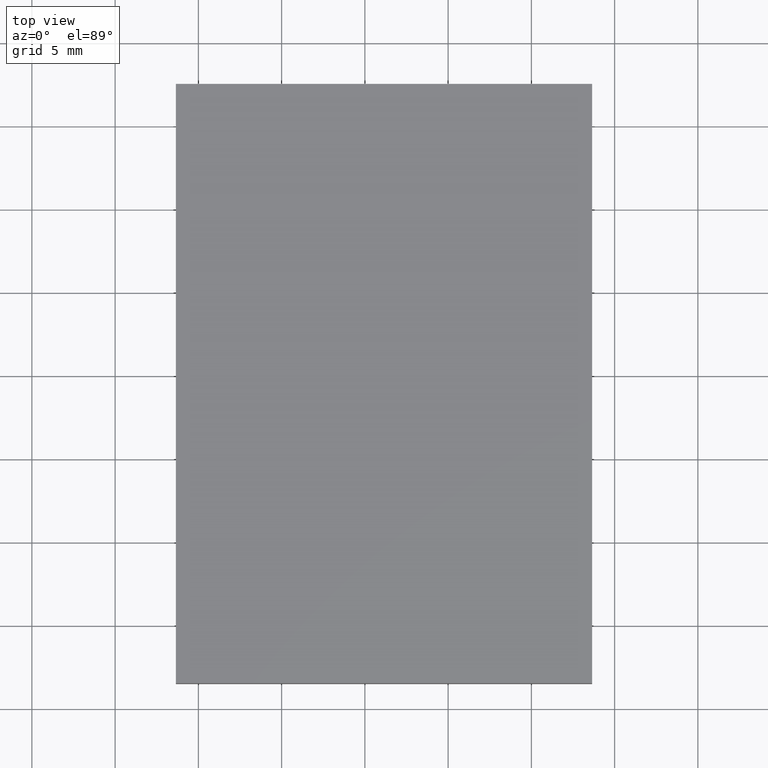
[diagram: clean part render]
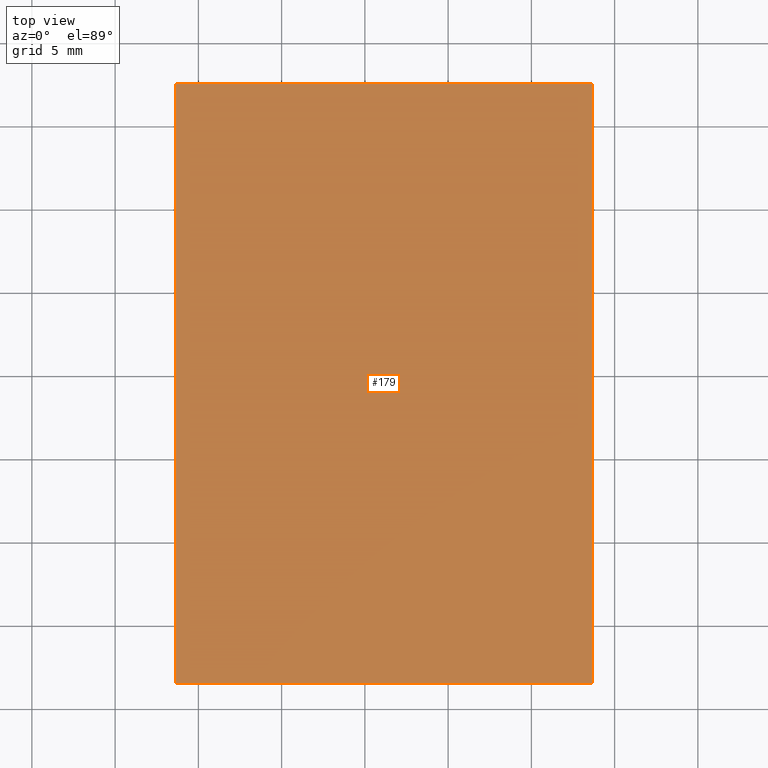
[diagram: same view with one face highlighted and labeled with its STEP entity id]
A machine part, top view. The second image highlights one B-rep face of the part: STEP entity #179.
In plain terms, the highlighted planar face has unit normal (-0, 0, 1).
Its self-contained STEP definition (entity closure, byte-faithful):
#4 = EDGE_LOOP ( 'NONE', ( #311, #129, #125, #105 ) ) ;
#12 = DIRECTION ( 'NONE',  ( 1.204669080539449300E-016, -1.000000000000000000, 0.0000000000000000000 ) ) ;
#17 = DIRECTION ( 'NONE',  ( -0.0000000000000000000, 0.0000000000000000000, 1.000000000000000000 ) ) ;
#19 = DIRECTION ( 'NONE',  ( 1.000000000000000000, 0.0000000000000000000, 0.0000000000000000000 ) ) ;
#20 = CARTESIAN_POINT ( 'NONE',  ( -6.351626016260158100, -28.47967479674797200, 3.000000000000000000 ) ) ;
#22 = VECTOR ( 'NONE', #42, 1000.000000000000000 ) ;
#27 = VECTOR ( 'NONE', #261, 1000.000000000000000 ) ;
#42 = DIRECTION ( 'NONE',  ( -1.000000000000000000, -0.0000000000000000000, -0.0000000000000000000 ) ) ;
#45 = EDGE_CURVE ( 'NONE', #205, #182, #237, .T. ) ;
#46 = CARTESIAN_POINT ( 'NONE',  ( 18.64837398373983700, 7.520325203252024700, 3.000000000000000000 ) ) ;
#58 = CARTESIAN_POINT ( 'NONE',  ( 18.64837398373983700, 7.520325203252024700, 3.000000000000000000 ) ) ;
#62 = DIRECTION ( 'NONE',  ( 1.000000000000000000, 0.0000000000000000000, 0.0000000000000000000 ) ) ;
#65 = CARTESIAN_POINT ( 'NONE',  ( -6.351626016260162500, 7.520325203252024700, 3.000000000000000000 ) ) ;
#71 = VERTEX_POINT ( 'NONE', #58 ) ;
#72 = CARTESIAN_POINT ( 'NONE',  ( -6.351626016260158100, -28.47967479674797200, 3.000000000000000000 ) ) ;
#105 = ORIENTED_EDGE ( 'NONE', *, *, #226, .T. ) ;
#106 = AXIS2_PLACEMENT_3D ( 'NONE', #191, #17, #62 ) ;
#110 = CARTESIAN_POINT ( 'NONE',  ( -6.351626016260162500, 7.520325203252024700, 3.000000000000000000 ) ) ;
#125 = ORIENTED_EDGE ( 'NONE', *, *, #184, .T. ) ;
#128 = LINE ( 'NONE', #110, #22 ) ;
#129 = ORIENTED_EDGE ( 'NONE', *, *, #180, .T. ) ;
#140 = LINE ( 'NONE', #46, #27 ) ;
#141 = VERTEX_POINT ( 'NONE', #312 ) ;
#168 = CARTESIAN_POINT ( 'NONE',  ( -6.351626016260162500, 7.520325203252024700, 3.000000000000000000 ) ) ;
#173 = VECTOR ( 'NONE', #12, 1000.000000000000000 ) ;
#179 = ADVANCED_FACE ( 'NONE', ( #295 ), #304, .T. ) ;
#180 = EDGE_CURVE ( 'NONE', #182, #141, #288, .T. ) ;
#182 = VERTEX_POINT ( 'NONE', #20 ) ;
#184 = EDGE_CURVE ( 'NONE', #141, #71, #140, .T. ) ;
#191 = CARTESIAN_POINT ( 'NONE',  ( 0.0000000000000000000, 0.0000000000000000000, 3.000000000000000000 ) ) ;
#205 = VERTEX_POINT ( 'NONE', #65 ) ;
#223 = VECTOR ( 'NONE', #19, 1000.000000000000000 ) ;
#226 = EDGE_CURVE ( 'NONE', #71, #205, #128, .T. ) ;
#237 = LINE ( 'NONE', #168, #173 ) ;
#261 = DIRECTION ( 'NONE',  ( -2.891205793294678800E-016, 1.000000000000000000, -0.0000000000000000000 ) ) ;
#288 = LINE ( 'NONE', #72, #223 ) ;
#295 = FACE_OUTER_BOUND ( 'NONE', #4, .T. ) ;
#304 = PLANE ( 'NONE',  #106 ) ;
#311 = ORIENTED_EDGE ( 'NONE', *, *, #45, .T. ) ;
#312 = CARTESIAN_POINT ( 'NONE',  ( 18.64837398373984800, -28.47967479674797200, 3.000000000000000000 ) ) ;